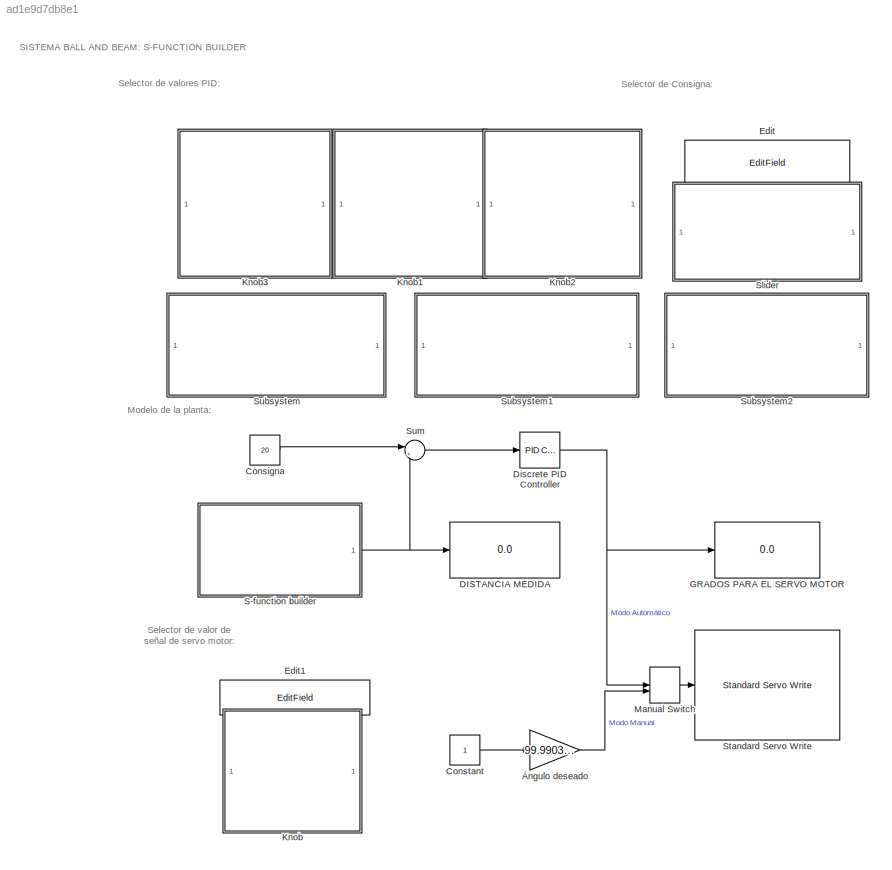
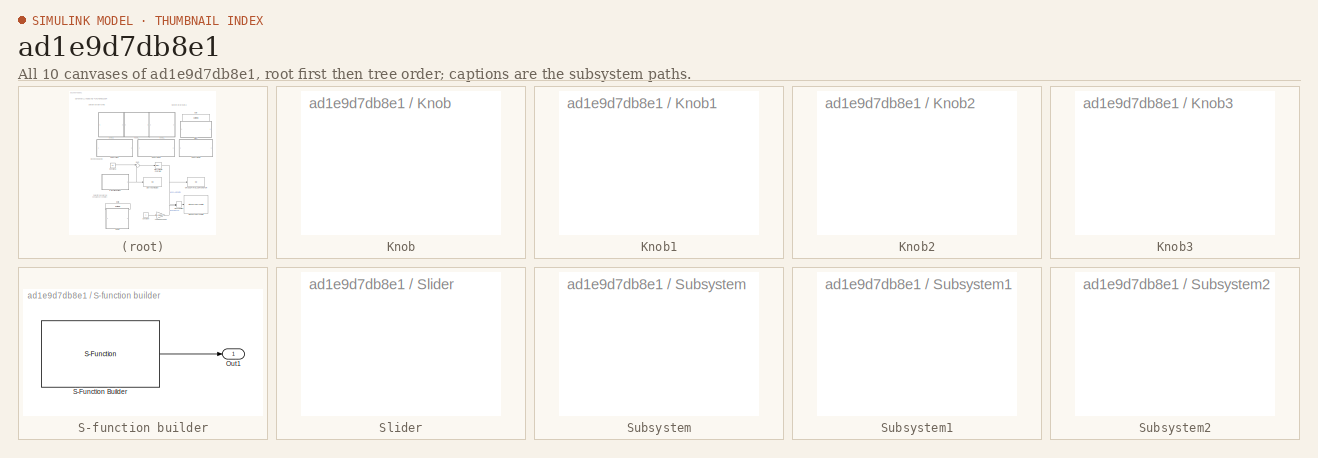
[diagram: thumbnail index - all 10 canvases of the model, root first then tree order]
MODEL slx_ad1e9d7db8e1
KIND model
CONFIG AbsTol = auto
CONFIG EnableMultiTasking = on
CONFIG FixedStep = 0.06
CONFIG MaxStep = auto
CONFIG MinStep = auto
CONFIG RelTol = 1e-3
CONFIG SampleTimeConstraint = Unconstrained
CONFIG Solver = FixedStepAuto
CONFIG SolverName = FixedStepAuto
CONFIG StartTime = 0.0
CONFIG StopTime = inf
BLOCK [Constant] Consigna
  Value = 20
BLOCK [Constant] Constant
BLOCK [Display] DISTANCIA MEDIDA
  Decimation = 1
  Ports = [1]
BLOCK [Reference] Discrete PID Controller  REF=simulink/Continuous/PID Controller
  Ports = [1, 1]
  SourceBlock = simulink/Continuous/PID Controller
  SourceProductBaseCode = SL
  SourceProductName = Simulink
  SourceType = PID 1dof
BLOCK [EditField] Edit
  Alignment = Center
  LabelPosition = Hide
  WebBlockId = 36
BLOCK [EditField] Edit1
  Alignment = Center
  LabelPosition = Hide
  WebBlockId = 67
BLOCK [Display] GRADOS PARA EL SERVO MOTOR
  Decimation = 1
  Ports = [1]
BLOCK [SubSystem] Knob
  DialogController = hmiCreateDDGDialog
  IsWebBlock = on
  MaskHideContents = on
  Ports = []
  RequestExecContextInheritance = off
BLOCK [SubSystem] Knob1
  DialogController = hmiCreateDDGDialog
  IsWebBlock = on
  MaskHideContents = on
  Ports = []
  RequestExecContextInheritance = off
BLOCK [SubSystem] Knob2
  DialogController = hmiCreateDDGDialog
  IsWebBlock = on
  MaskHideContents = on
  Ports = []
  RequestExecContextInheritance = off
BLOCK [SubSystem] Knob3
  DialogController = hmiCreateDDGDialog
  IsWebBlock = on
  MaskHideContents = on
  Ports = []
  RequestExecContextInheritance = off
BLOCK [ManualSwitch] Manual Switch
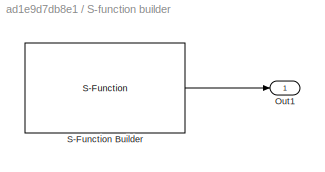
BLOCK [SubSystem] S-function builder
  Ports = [0, 1]
  RequestExecContextInheritance = off
BLOCK [Outport] S-function builder/Out1
  IconDisplay = Port number
BLOCK [S-Function] S-function builder/S-Function Builder
  CopyFcn = set_param(gcbh,'LinkStatus','none')
  EnableBusSupport = off
  FunctionName = bloque1
  InitFcn = try, set_param(gcb,'FunctionName','bloque1'), end
  OpenFcn = sfunctionwizard(gcbh)
  Ports = [0, 1]
  PreSaveFcn = try, set_param(gcb,'FunctionName','bloque1'), end
  SFcnIsStateOwnerBlock = off
  SFunctionDeploymentMode = off
  SFunctionModules = bloque1_wrapper
BLOCK [SubSystem] Slider
  DialogController = hmiCreateDDGDialog
  IsWebBlock = on
  MaskHideContents = on
  Ports = []
  RequestExecContextInheritance = off
BLOCK [Reference] Standard Servo Write  REF=arduinolib/Standard Servo Write
  Ports = [1]
  SourceBlock = arduinolib/Standard Servo Write
  SourceProductBaseCode = ARDUINO
  SourceProductName = Simulink Support Package for Arduino Hardware
  SourceType = Arduino Standard Servo Write
BLOCK [SubSystem] Subsystem
  Ports = []
  RequestExecContextInheritance = off
BLOCK [SubSystem] Subsystem1
  Ports = []
  RequestExecContextInheritance = off
BLOCK [SubSystem] Subsystem2
  Ports = []
  RequestExecContextInheritance = off
BLOCK [Sum] Sum
  IconShape = round
  InputSameDT = off
  Inputs = |+-
  OutDataTypeStr = Inherit: Inherit via internal rule
  Ports = [2, 1]
  SaturateOnIntegerOverflow = off
BLOCK [Gain] Ángulo deseado
  Gain = 99.99031782242
  OutDataTypeStr = Inherit: Inherit via internal rule
  ParamDataTypeStr = Inherit: Inherit via internal rule
  ParamMax = 180
  ParamMin = 0
  SaturateOnIntegerOverflow = off
ANNOTATION (root): Modelo de la planta:
ANNOTATION (root): SISTEMA BALL AND BEAM: S-FUNCTION BUILDER
ANNOTATION (root): Selector de Consigna:
ANNOTATION (root): Selector de valor de señal de servo motor:
ANNOTATION (root): Selector de valores PID:
LINE Consigna:1 -> Sum:1
LINE Constant:1 -> Ángulo deseado:1
NET Discrete PID Controller:1 -> GRADOS PARA EL SERVO MOTOR:1, Manual Switch:1
LINE Manual Switch:1 -> Standard Servo Write:1
LINE S-function builder/S-Function Builder:1 -> S-function builder/Out1:1
NET S-function builder:1 -> DISTANCIA MEDIDA:1, Sum:2
LINE Sum:1 -> Discrete PID Controller:1
LINE Ángulo deseado:1 -> Manual Switch:2
note: NET lines group one-source signal fan-out (src -> all destinations, sorted); 1:1 wires keep LINE
